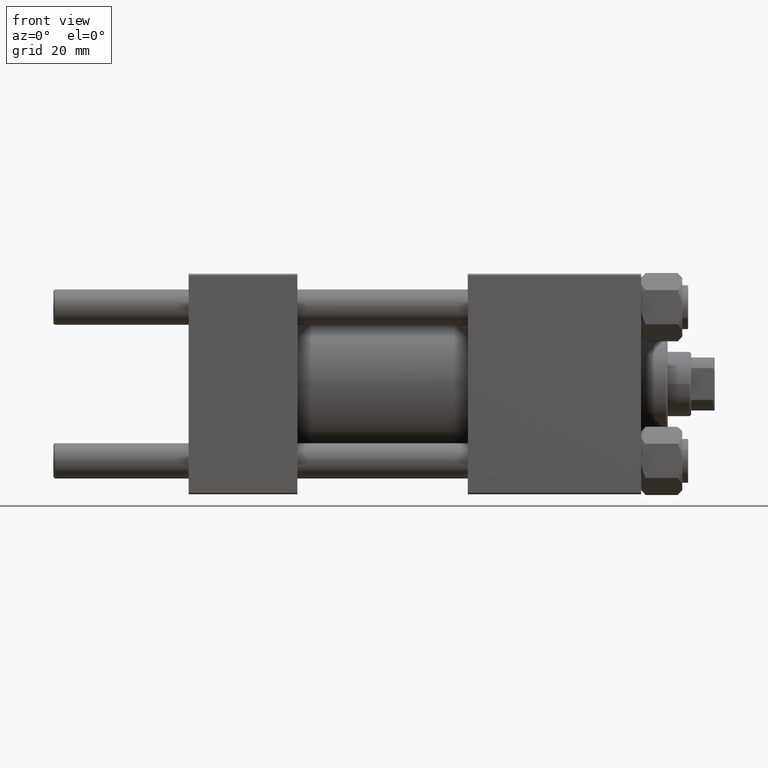
[diagram: clean part render]
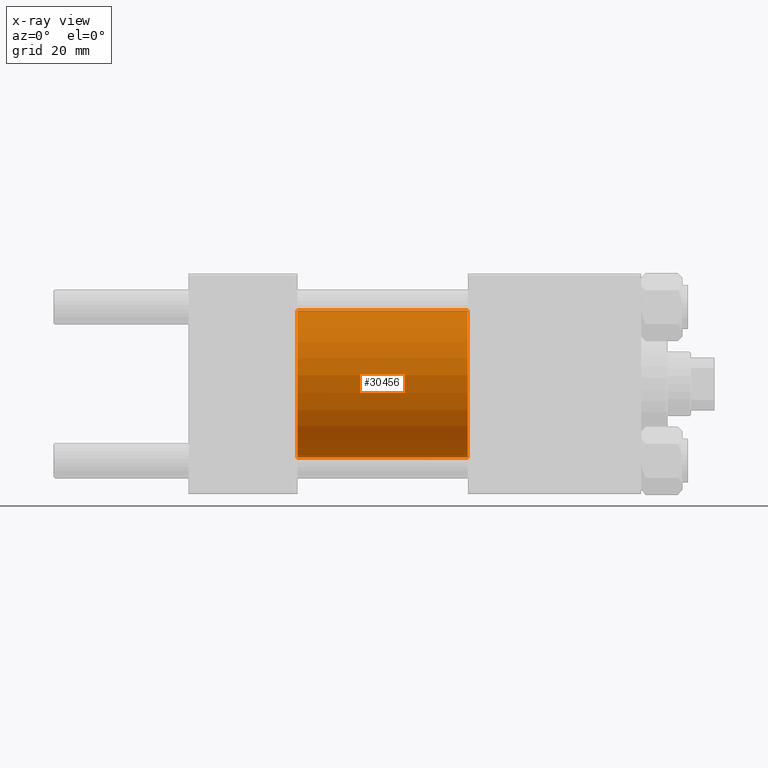
[diagram: x-ray — body ghosted, one internal face saturated and labeled with its STEP entity id]
A machine part, front view, then the same camera in x-ray: the body is ghosted and one INTERNAL B-rep face — a face not visible from any outside direction — is saturated and labeled: STEP entity #30456.
In plain terms, the highlighted cylindrical surface (partial cylindrical patch) has radius 25 mm, axis along (-1, -0, -0).
Its self-contained STEP definition (entity closure, byte-faithful):
#1381 = CIRCLE ( 'NONE', #31953, 25.00000000000000000 ) ;
#2410 = EDGE_CURVE ( 'NONE', #5844, #28669, #43479, .T. ) ;
#4151 = DIRECTION ( 'NONE',  ( 0.000000000000000000, 0.000000000000000000, 1.000000000000000000 ) ) ;
#5844 = VERTEX_POINT ( 'NONE', #30301 ) ;
#7231 = CARTESIAN_POINT ( 'NONE',  ( 95.00000000000000000, 3.061616997868382254E-15, -25.00000000000000000 ) ) ;
#8302 = ORIENTED_EDGE ( 'NONE', *, *, #39828, .F. ) ;
#10601 = AXIS2_PLACEMENT_3D ( 'NONE', #14299, #29877, #42162 ) ;
#11344 = VERTEX_POINT ( 'NONE', #43094 ) ;
#12204 = CARTESIAN_POINT ( 'NONE',  ( 95.00000000000000000, 0.000000000000000000, 0.000000000000000000 ) ) ;
#12900 = CARTESIAN_POINT ( 'NONE',  ( 37.00000000000000000, 0.000000000000000000, 0.000000000000000000 ) ) ;
#13511 = DIRECTION ( 'NONE',  ( -1.000000000000000000, -0.000000000000000000, -0.000000000000000000 ) ) ;
#14299 = CARTESIAN_POINT ( 'NONE',  ( 95.00000000000000000, 0.000000000000000000, 0.000000000000000000 ) ) ;
#15022 = VECTOR ( 'NONE', #13511, 1000.000000000000000 ) ;
#19776 = LINE ( 'NONE', #7231, #42390 ) ;
#20431 = DIRECTION ( 'NONE',  ( 0.000000000000000000, 0.000000000000000000, -1.000000000000000000 ) ) ;
#24174 = EDGE_LOOP ( 'NONE', ( #34246, #43263, #41113, #8302 ) ) ;
#24464 = CARTESIAN_POINT ( 'NONE',  ( 37.00000000000000000, 0.000000000000000000, 25.00000000000000000 ) ) ;
#26495 = CARTESIAN_POINT ( 'NONE',  ( 95.00000000000000000, 3.061616997868382254E-15, -25.00000000000000000 ) ) ;
#28669 = VERTEX_POINT ( 'NONE', #26495 ) ;
#29877 = DIRECTION ( 'NONE',  ( 1.000000000000000000, 0.000000000000000000, 0.000000000000000000 ) ) ;
#30301 = CARTESIAN_POINT ( 'NONE',  ( 95.00000000000000000, 0.000000000000000000, 25.00000000000000000 ) ) ;
#30456 = ADVANCED_FACE ( 'NONE', ( #31311 ), #49691, .F. ) ;
#31311 = FACE_OUTER_BOUND ( 'NONE', #24174, .T. ) ;
#31953 = AXIS2_PLACEMENT_3D ( 'NONE', #12900, #43555, #20431 ) ;
#34149 = DIRECTION ( 'NONE',  ( -1.000000000000000000, -0.000000000000000000, -0.000000000000000000 ) ) ;
#34246 = ORIENTED_EDGE ( 'NONE', *, *, #2410, .T. ) ;
#36899 = LINE ( 'NONE', #48706, #15022 ) ;
#39828 = EDGE_CURVE ( 'NONE', #5844, #46114, #36899, .T. ) ;
#41113 = ORIENTED_EDGE ( 'NONE', *, *, #42826, .F. ) ;
#42162 = DIRECTION ( 'NONE',  ( 0.000000000000000000, 0.000000000000000000, -1.000000000000000000 ) ) ;
#42390 = VECTOR ( 'NONE', #34149, 1000.000000000000000 ) ;
#42826 = EDGE_CURVE ( 'NONE', #46114, #11344, #1381, .T. ) ;
#43094 = CARTESIAN_POINT ( 'NONE',  ( 37.00000000000000000, 3.061616997868382254E-15, -25.00000000000000000 ) ) ;
#43263 = ORIENTED_EDGE ( 'NONE', *, *, #44547, .T. ) ;
#43479 = CIRCLE ( 'NONE', #10601, 25.00000000000000000 ) ;
#43555 = DIRECTION ( 'NONE',  ( 1.000000000000000000, 0.000000000000000000, 0.000000000000000000 ) ) ;
#44547 = EDGE_CURVE ( 'NONE', #28669, #11344, #19776, .T. ) ;
#45090 = AXIS2_PLACEMENT_3D ( 'NONE', #12204, #46143, #4151 ) ;
#46114 = VERTEX_POINT ( 'NONE', #24464 ) ;
#46143 = DIRECTION ( 'NONE',  ( -1.000000000000000000, -0.000000000000000000, -0.000000000000000000 ) ) ;
#48706 = CARTESIAN_POINT ( 'NONE',  ( 95.00000000000000000, 0.000000000000000000, 25.00000000000000000 ) ) ;
#49691 = CYLINDRICAL_SURFACE ( 'NONE', #45090, 25.00000000000000000 ) ;